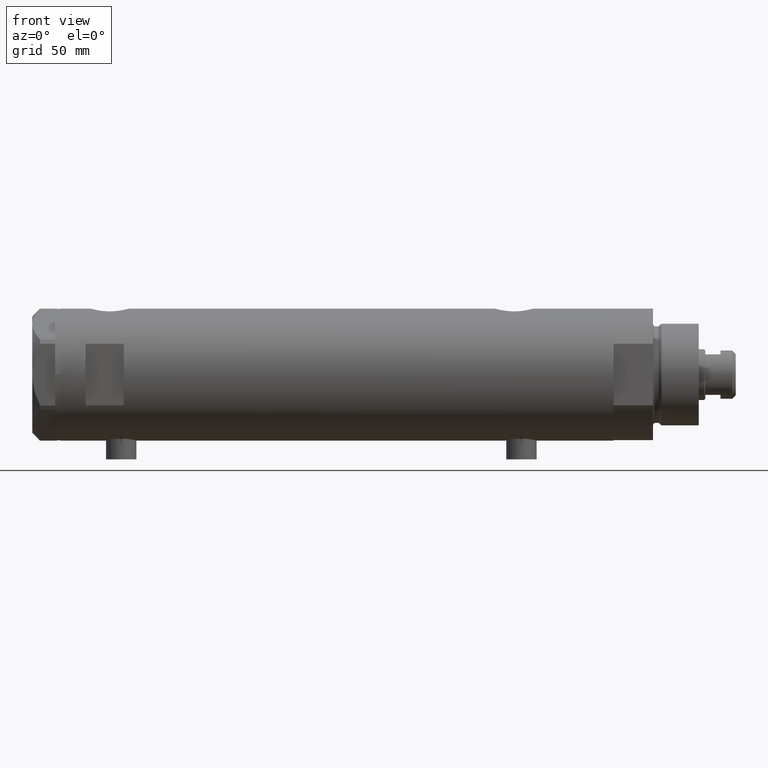
[diagram: clean part render]
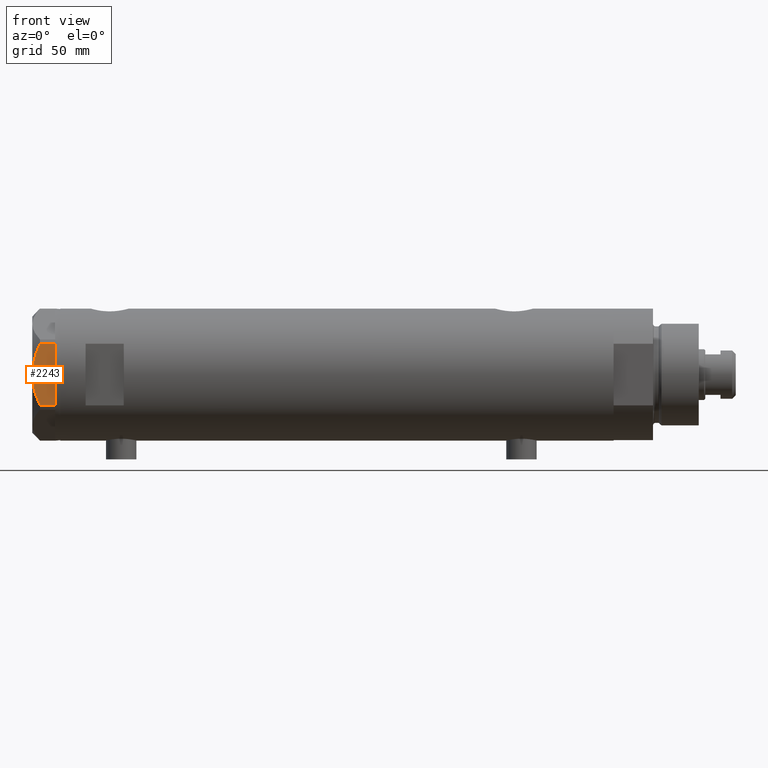
[diagram: same view with one face highlighted and labeled with its STEP entity id]
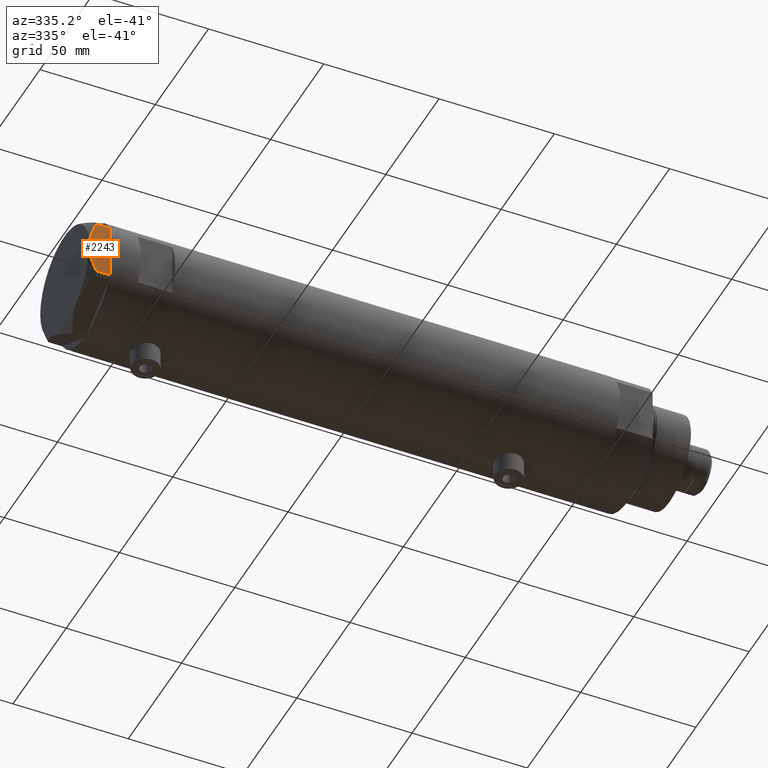
[diagram: same view with one face highlighted and labeled with its STEP entity id]
A machine part, front view. The second image highlights one B-rep face of the part: STEP entity #2243.
A second angle (auxiliary view) of the same face is appended — the face is thin or edge-on in the first view.
In plain terms, the highlighted planar face has unit normal (-0, 1, -0).
Its self-contained STEP definition (entity closure, byte-faithful):
#9 = CARTESIAN_POINT ( 'NONE',  ( -22.99999999999995737, -0.5295934231897764244, 9.000000000000092371 ) ) ;
#27 = VERTEX_POINT ( 'NONE', #1666 ) ;
#208 = DIRECTION ( 'NONE',  ( 3.527173405730720141E-15, -1.000000000000000000, 0.000000000000000000 ) ) ;
#275 = CARTESIAN_POINT ( 'NONE',  ( -22.99999999999999645, 13.27905619136132032, 9.000000000000000000 ) ) ;
#301 = DIRECTION ( 'NONE',  ( -3.527173405730720141E-15, 1.000000000000000000, 0.000000000000000000 ) ) ;
#329 = CARTESIAN_POINT ( 'NONE',  ( -22.99999999999996803, 7.239756182922199024, 7.892186063422847120 ) ) ;
#349 = CARTESIAN_POINT ( 'NONE',  ( -22.99999999999999645, 13.27905619136132032, 0.000000000000000000 ) ) ;
#415 = DIRECTION ( 'NONE',  ( 3.527173405730720141E-15, -1.000000000000000000, 0.000000000000000000 ) ) ;
#516 = CARTESIAN_POINT ( 'NONE',  ( -22.99999999999990763, -12.15905619136147386, 9.000000000000000000 ) ) ;
#675 = VERTEX_POINT ( 'NONE', #2524 ) ;
#713 = CARTESIAN_POINT ( 'NONE',  ( -22.99999999999998224, 8.246028007352361300, 7.571131808646907935 ) ) ;
#744 = CARTESIAN_POINT ( 'NONE',  ( -22.99999999999993960, -2.643615312305158671, 8.854304560636265364 ) ) ;
#785 = ORIENTED_EDGE ( 'NONE', *, *, #3900, .T. ) ;
#854 = CARTESIAN_POINT ( 'NONE',  ( -22.99999999999990763, -12.12435565298232021, 0.000000000000000000 ) ) ;
#1082 = EDGE_CURVE ( 'NONE', #1100, #675, #2366, .T. ) ;
#1100 = VERTEX_POINT ( 'NONE', #854 ) ;
#1103 = CARTESIAN_POINT ( 'NONE',  ( -22.99999999999998579, 10.23890159976122050, 6.840812428290914404 ) ) ;
#1124 = DIRECTION ( 'NONE',  ( 3.527173405730720141E-15, -1.000000000000000000, 0.000000000000000000 ) ) ;
#1128 = CARTESIAN_POINT ( 'NONE',  ( -22.99999999999995026, -1.063773509315737442, 8.981438083606830602 ) ) ;
#1161 = CARTESIAN_POINT ( 'NONE',  ( -22.99999999999996803, 4.194757081058972936, 8.703000351525203016 ) ) ;
#1344 = CARTESIAN_POINT ( 'NONE',  ( -22.99999999999999289, 12.15905619136133176, 5.983800287807616414 ) ) ;
#1542 = ORIENTED_EDGE ( 'NONE', *, *, #1082, .T. ) ;
#1554 = CARTESIAN_POINT ( 'NONE',  ( -22.99999999999991118, -10.22738952213794761, 6.832470313674783746 ) ) ;
#1576 = VECTOR ( 'NONE', #4707, 1000.000000000000000 ) ;
#1606 = CARTESIAN_POINT ( 'NONE',  ( -22.99999999999993960, -2.119709279061923191, 8.908535212173198659 ) ) ;
#1639 = AXIS2_PLACEMENT_3D ( 'NONE', #275, #3896, #301 ) ;
#1666 = CARTESIAN_POINT ( 'NONE',  ( -22.99999999999999289, 12.15905619136133176, 0.000000000000000000 ) ) ;
#1881 = VECTOR ( 'NONE', #415, 1000.000000000000000 ) ;
#1929 = B_SPLINE_CURVE_WITH_KNOTS ( 'NONE', 3,
 ( #3111, #3132, #1103, #4315, #713, #329, #3531, #1161, #4837, #2791 ),
 .UNSPECIFIED., .F., .F.,
 ( 4, 2, 2, 2, 4 ),
 ( 0.03516523594057416324, 0.03831677594541234300, 0.03989254594783143981, 0.04146831595025052969, 0.04777139595992690307 ),
 .UNSPECIFIED. ) ;
#1949 = CARTESIAN_POINT ( 'NONE',  ( -22.99999999999992184, -7.253003311474388148, 7.903276810347638737 ) ) ;
#2001 = ORIENTED_EDGE ( 'NONE', *, *, #4254, .F. ) ;
#2048 = VERTEX_POINT ( 'NONE', #3271 ) ;
#2243 = ADVANCED_FACE ( 'NONE', ( #3478 ), #4294, .F. ) ;
#2352 = LINE ( 'NONE', #349, #2999 ) ;
#2354 = CARTESIAN_POINT ( 'NONE',  ( -22.99999999999992895, -5.228918809624124364, 8.433337033849854336 ) ) ;
#2366 = LINE ( 'NONE', #3642, #1881 ) ;
#2524 = CARTESIAN_POINT ( 'NONE',  ( -22.99999999999990763, -12.15905619136147386, 0.000000000000000000 ) ) ;
#2620 = VERTEX_POINT ( 'NONE', #2657 ) ;
#2657 = CARTESIAN_POINT ( 'NONE',  ( -23.00000000000004619, -8.112498833180673323E-14, 9.000000000000000000 ) ) ;
#2712 = EDGE_CURVE ( 'NONE', #5103, #1100, #3468, .T. ) ;
#2757 = CARTESIAN_POINT ( 'NONE',  ( -22.99999999999999289, 12.12435565298215856, 0.000000000000000000 ) ) ;
#2791 = CARTESIAN_POINT ( 'NONE',  ( -23.00000000000004619, -8.112498833180673323E-14, 9.000000000000000000 ) ) ;
#2834 = ORIENTED_EDGE ( 'NONE', *, *, #3358, .T. ) ;
#2987 = VECTOR ( 'NONE', #208, 1000.000000000000000 ) ;
#2999 = VECTOR ( 'NONE', #1124, 1000.000000000000000 ) ;
#3111 = CARTESIAN_POINT ( 'NONE',  ( -22.99999999999999289, 12.15905619136133176, 5.983800287807616414 ) ) ;
#3132 = CARTESIAN_POINT ( 'NONE',  ( -22.99999999999998934, 11.20825071633916359, 6.428173306378450746 ) ) ;
#3156 = CARTESIAN_POINT ( 'NONE',  ( -22.99999999999990763, -11.68282849742335827, 6.206372352695425754 ) ) ;
#3271 = CARTESIAN_POINT ( 'NONE',  ( -22.99999999999990763, -12.15905619136147564, 5.983800287807627072 ) ) ;
#3358 = EDGE_CURVE ( 'NONE', #675, #2048, #4537, .T. ) ;
#3446 = LINE ( 'NONE', #5049, #1576 ) ;
#3468 = LINE ( 'NONE', #4682, #2987 ) ;
#3478 = FACE_OUTER_BOUND ( 'NONE', #4820, .T. ) ;
#3531 = CARTESIAN_POINT ( 'NONE',  ( -22.99999999999997158, 6.734330413511419700, 8.039389741252668031 ) ) ;
#3552 = CARTESIAN_POINT ( 'NONE',  ( -22.99999999999991829, -8.252113629125268801, 7.581642062680223226 ) ) ;
#3642 = CARTESIAN_POINT ( 'NONE',  ( -22.99999999999999645, 13.27905619136132032, 0.000000000000000000 ) ) ;
#3751 = VECTOR ( 'NONE', #4824, 1000.000000000000000 ) ;
#3896 = DIRECTION ( 'NONE',  ( 1.000000000000000000, 3.527173405730720141E-15, -0.000000000000000000 ) ) ;
#3900 = EDGE_CURVE ( 'NONE', #4099, #27, #3446, .T. ) ;
#3952 = CARTESIAN_POINT ( 'NONE',  ( -22.99999999999993250, -4.203926054641964782, 8.641681223122507305 ) ) ;
#3955 = EDGE_CURVE ( 'NONE', #27, #5103, #2352, .T. ) ;
#3989 = B_SPLINE_CURVE_WITH_KNOTS ( 'NONE', 3,
 ( #3998, #9, #1128, #1606, #744, #3952, #2354, #1949, #3552, #5153, #1554, #4811, #3156, #4762 ),
 .UNSPECIFIED., .F., .F.,
 ( 4, 2, 2, 2, 2, 2, 4 ),
 ( 0.04777139595992690307, 0.04934380568070229761, 0.05091621540147769215, 0.05406103484302848122, 0.05720585428457927030, 0.05877826400535466483, 0.06035067372613005937 ),
 .UNSPECIFIED. ) ;
#3998 = CARTESIAN_POINT ( 'NONE',  ( -23.00000000000004619, -8.112498833180673323E-14, 9.000000000000000000 ) ) ;
#4016 = ORIENTED_EDGE ( 'NONE', *, *, #3955, .T. ) ;
#4099 = VERTEX_POINT ( 'NONE', #1344 ) ;
#4254 = EDGE_CURVE ( 'NONE', #4099, #2620, #1929, .T. ) ;
#4294 = PLANE ( 'NONE',  #1639 ) ;
#4315 = CARTESIAN_POINT ( 'NONE',  ( -22.99999999999997513, 8.748091966971378142, 7.396818978284571244 ) ) ;
#4387 = EDGE_CURVE ( 'NONE', #2620, #2048, #3989, .T. ) ;
#4537 = LINE ( 'NONE', #516, #3751 ) ;
#4664 = ORIENTED_EDGE ( 'NONE', *, *, #2712, .T. ) ;
#4682 = CARTESIAN_POINT ( 'NONE',  ( -22.99999999999999645, 13.27905619136132032, 0.000000000000000000 ) ) ;
#4707 = DIRECTION ( 'NONE',  ( 0.000000000000000000, 0.000000000000000000, -1.000000000000000000 ) ) ;
#4762 = CARTESIAN_POINT ( 'NONE',  ( -22.99999999999990763, -12.15905619136147564, 5.983800287807627072 ) ) ;
#4811 = CARTESIAN_POINT ( 'NONE',  ( -22.99999999999991118, -11.20155944044816287, 6.421102682632757741 ) ) ;
#4820 = EDGE_LOOP ( 'NONE', ( #2001, #785, #4016, #4664, #1542, #2834, #4915 ) ) ;
#4824 = DIRECTION ( 'NONE',  ( 0.000000000000000000, 0.000000000000000000, 1.000000000000000000 ) ) ;
#4837 = CARTESIAN_POINT ( 'NONE',  ( -22.99999999999995381, 2.122900714018063795, 9.000000000000092371 ) ) ;
#4915 = ORIENTED_EDGE ( 'NONE', *, *, #4387, .F. ) ;
#5049 = CARTESIAN_POINT ( 'NONE',  ( -22.99999999999999289, 12.15905619136133176, 9.000000000000000000 ) ) ;
#5103 = VERTEX_POINT ( 'NONE', #2757 ) ;
#5153 = CARTESIAN_POINT ( 'NONE',  ( -22.99999999999991829, -9.734726261263297431, 7.028924700095662281 ) ) ;